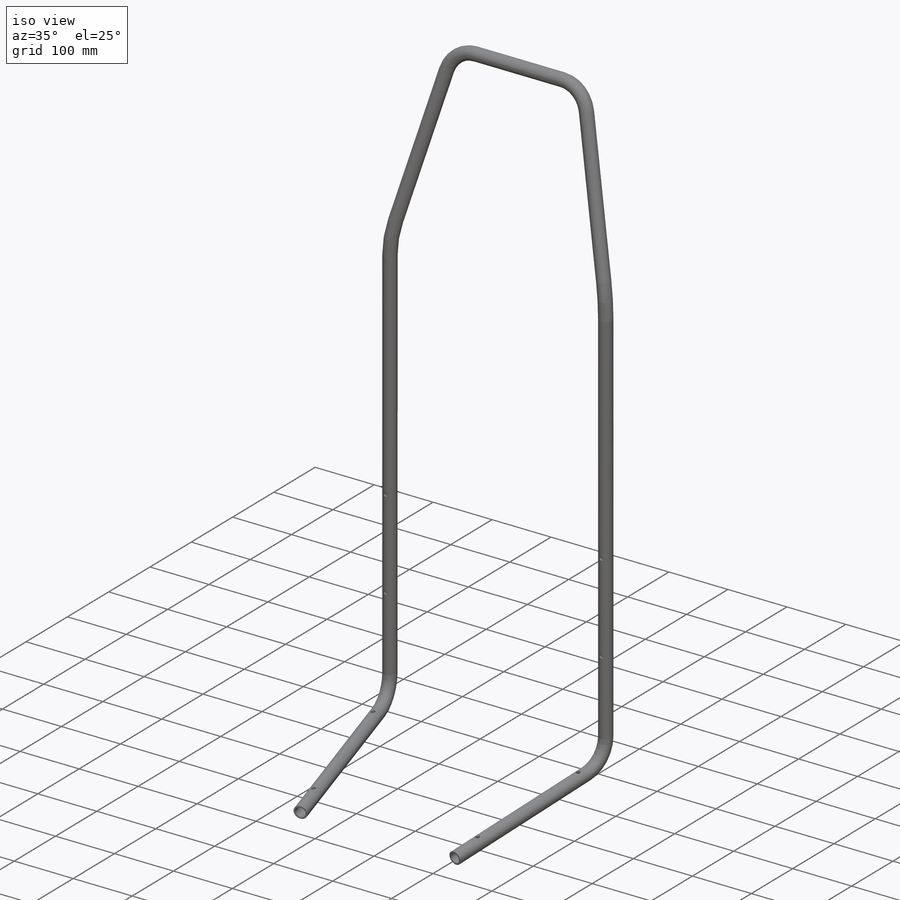
[diagram: iso view]
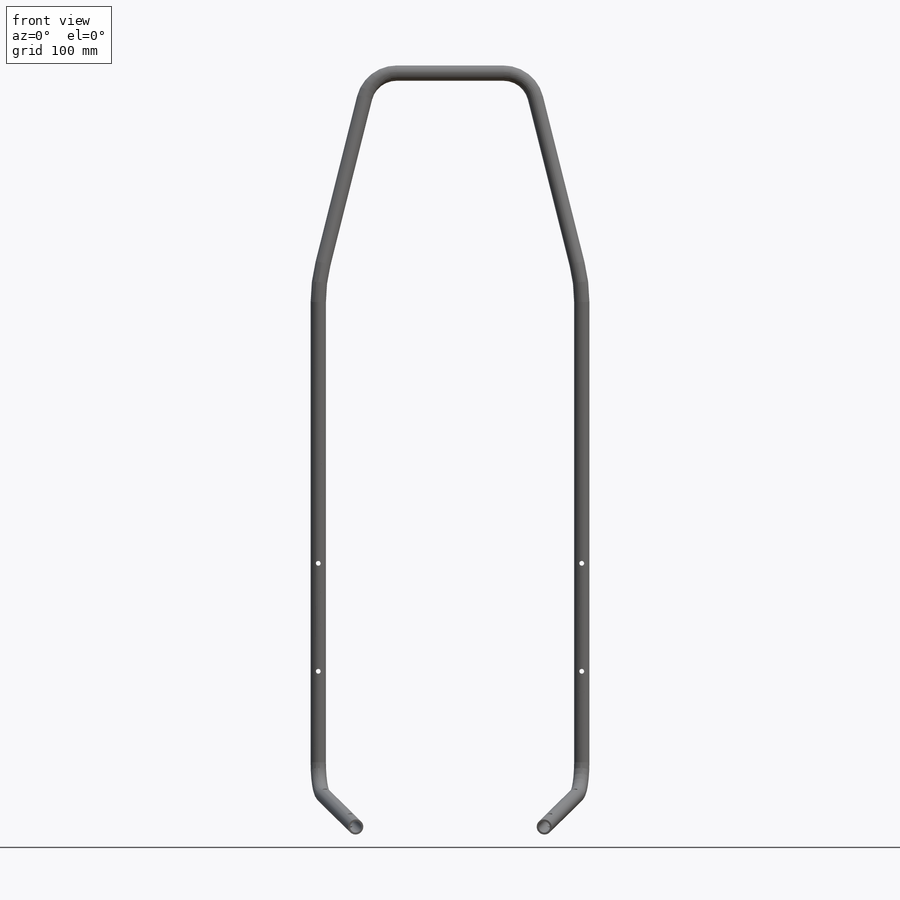
[diagram: front view]
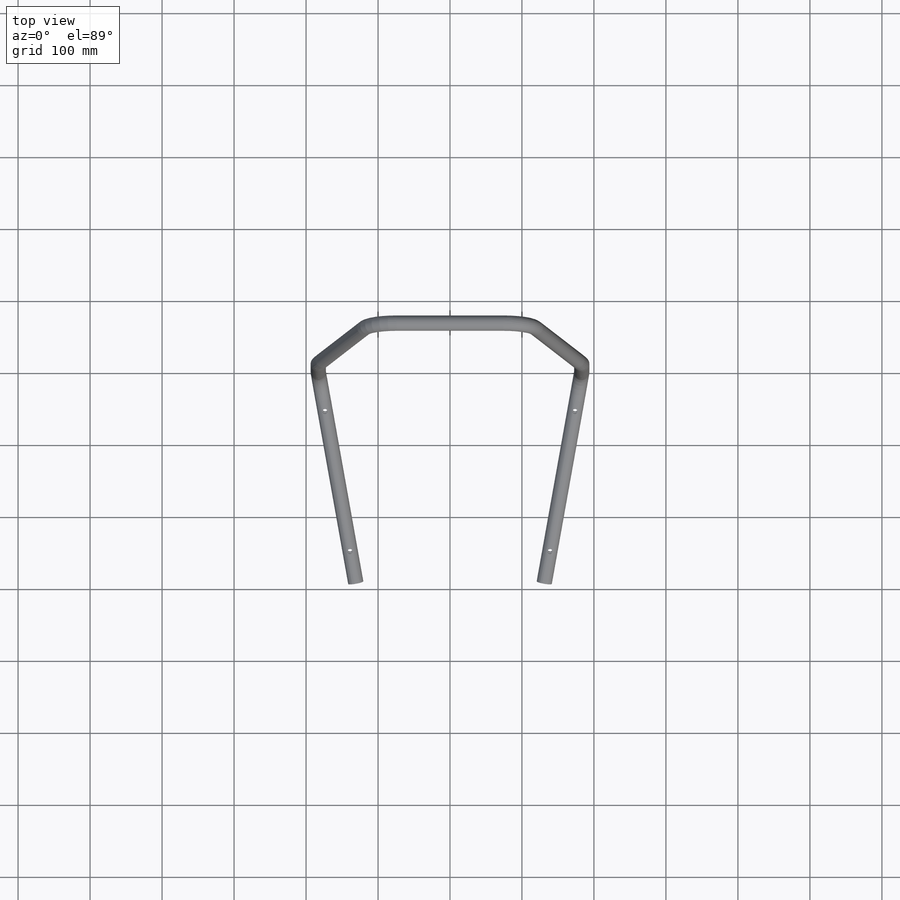
[diagram: top view]
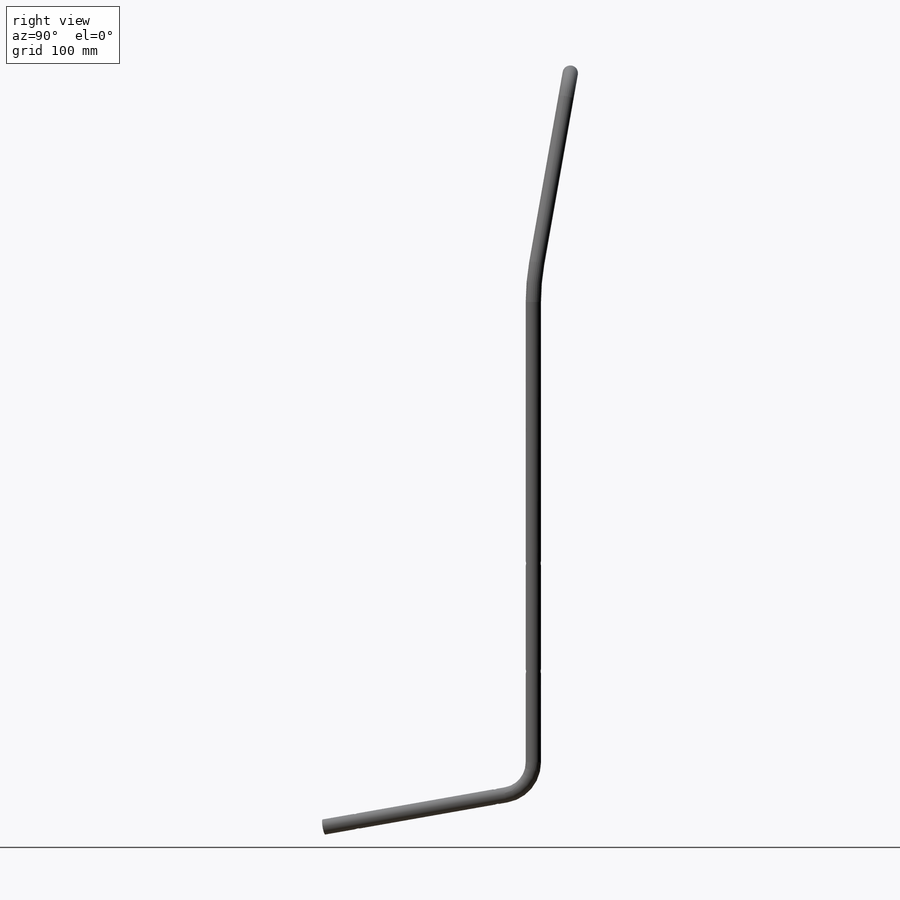
[diagram: right view]
SOLIDWORKS PART (.sldprt)
format: sldprt  version: not decoded by parser v0  size: 539,648 bytes
history: native  units: mm
features: sketch x14, plane x7, sweep x3, cut_extrude x2, material x1 (+8 scaffold rows collapsed)
feature tree (35):
  scaffold x8  (default folders/planes/origin — collapsed)
  material  "1.0242 (S250GD)"
  plane  "Ebene vorne"
  plane  "Ebene oben"
  plane  "Ebene rechts"
  sketch  "Skizze1"  dims[D1=366.0mm D2=900.0mm D3=105.0mm]
  sketch  "Skizze2"  dims[c1.D1=~332.797352mm c2.D1=10.0deg c2.D2=300.0mm c2.D3=~52.898094mm]
  sketch  "Skizze3"
  plane  "Ebene1"
  sketch  "Skizze4"  dims[D1=220.0mm]
  sketch  "3D-Skizze1"  dims[D1=180.0mm D2=46.0mm]
  plane  "Ebene2"
  sketch  "Skizze5"  dims[D1=21.3mm D2=2.7mm]
  sweep  "Austragung1"
  sketch  "Skizze9"  dims[D1=6.6mm D2=150.0mm D3=60.0mm]
  cut_extrude  "Schnitt-Linear austragen1"  Depth=60mm
  plane  "Ebene3"
  sketch  "Skizze10"  dims[c1.D1=~168.019414mm c2.D1=10.0deg]
  plane  "Ebene4"
  sketch  "Skizze11"  dims[c1.D1=~189.679874mm c2.D1=10.0deg c2.D2=300.0mm]
  sketch  "3D-Skizze2"  dims[D1=46.0mm]
  sweep  "Austragung2"
  sketch  "Skizze5<2>"
  sketch  "Skizze14"  dims[D1=0.0mm]
  sketch  "3D-Skizze3"  dims[D1=46.0mm]
  sweep  "Austragung3"
  sketch  "Skizze12"  dims[D1=6.6mm D2=15.0mm D3=200.0mm]
  cut_extrude  "Schnitt-Linear austragen2"  [1 undecoded]
decode coverage: 13 of 19 modeling features carry decoded parameters
note: ~ marks probable driven/reference dimensions
note: 1 parameter value undecoded
note: suppression state not decoded; provenance and decode notes live in map.json
